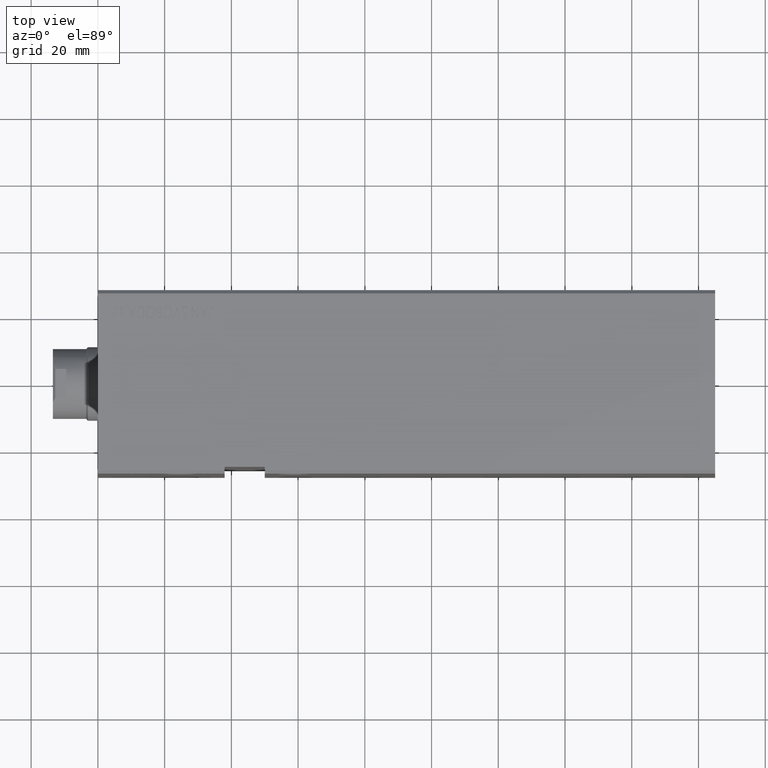
[diagram: clean part render]
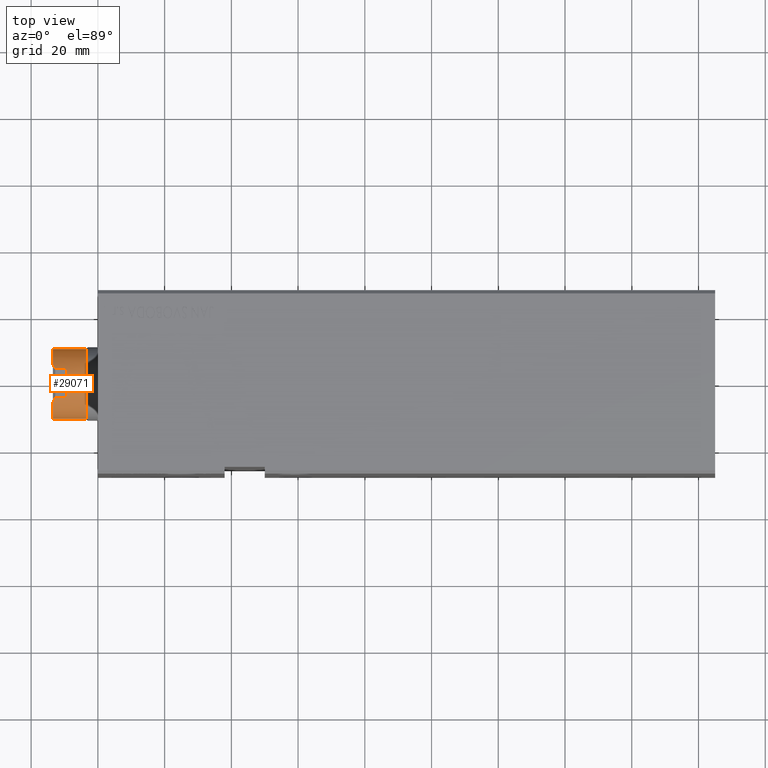
[diagram: same view with one face highlighted and labeled with its STEP entity id]
A machine part, top view. The second image highlights one B-rep face of the part: STEP entity #29071.
In plain terms, the highlighted cylindrical surface (edge-blend (fillet) strip) has radius 10.46 mm, axis along (-1, -0, -0).
Its self-contained STEP definition (entity closure, byte-faithful):
#2073 = LINE ( 'NONE', #29870, #17425 ) ;
#2791 = EDGE_LOOP ( 'NONE', ( #27943, #11962, #25931, #2933, #5032, #22226, #9456, #16878, #5314, #20015 ) ) ;
#2933 = ORIENTED_EDGE ( 'NONE', *, *, #8256, .T. ) ;
#3256 = CARTESIAN_POINT ( 'NONE',  ( 9.500000000000000000, 4.377396486497395323, 167.7900000000000489 ) ) ;
#3347 = CARTESIAN_POINT ( 'NONE',  ( 1.280980551908131527E-15, 10.45999999999996888, 168.5000000000000000 ) ) ;
#3647 = CARTESIAN_POINT ( 'NONE',  ( 9.500000000000000000, -4.377396486497458383, 167.7900000000000489 ) ) ;
#4250 = DIRECTION ( 'NONE',  ( 0.000000000000000000, -1.000000000000000000, 0.000000000000000000 ) ) ;
#4658 = AXIS2_PLACEMENT_3D ( 'NONE', #5890, #19424, #4250 ) ;
#4815 = DIRECTION ( 'NONE',  ( -0.000000000000000000, -1.830961800348780351E-16, 1.000000000000000000 ) ) ;
#5032 = ORIENTED_EDGE ( 'NONE', *, *, #34159, .T. ) ;
#5314 = ORIENTED_EDGE ( 'NONE', *, *, #36411, .F. ) ;
#5890 = CARTESIAN_POINT ( 'NONE',  ( 0.000000000000000000, -3.085170633587695342E-14, 168.5000000000000000 ) ) ;
#5997 = DIRECTION ( 'NONE',  ( 0.000000000000000000, 1.830961800348780351E-16, -1.000000000000000000 ) ) ;
#6751 = VECTOR ( 'NONE', #9557, 1000.000000000000000 ) ;
#7099 = CARTESIAN_POINT ( 'NONE',  ( 8.790000000000025793, 5.669876541865724207, 168.5000000000000000 ) ) ;
#7405 = CARTESIAN_POINT ( 'NONE',  ( 0.000000000000000000, -3.085170633587695342E-14, 168.5000000000000000 ) ) ;
#7492 = CARTESIAN_POINT ( 'NONE',  ( 9.056889589612573843, 5.256118063110149841, 168.2331104103874964 ) ) ;
#8256 = EDGE_CURVE ( 'NONE', #34625, #27862, #21797, .T. ) ;
#8690 = CARTESIAN_POINT ( 'NONE',  ( 8.790000000000025793, -5.669876541865786379, 168.5000000000000000 ) ) ;
#9431 = EDGE_CURVE ( 'NONE', #25164, #30307, #21986, .T. ) ;
#9456 = ORIENTED_EDGE ( 'NONE', *, *, #9805, .T. ) ;
#9557 = DIRECTION ( 'NONE',  ( -0.000000000000000000, -1.830961800348780351E-16, 1.000000000000000000 ) ) ;
#9590 = CARTESIAN_POINT ( 'NONE',  ( 9.500000000000000000, -4.377396486497458383, 167.7900000000000489 ) ) ;
#9769 =( BOUNDED_CURVE ( )  B_SPLINE_CURVE ( 3, ( #3647, #21837, #18443, #30638 ),
 .UNSPECIFIED., .F., .F. ) 
 B_SPLINE_CURVE_WITH_KNOTS ( ( 4, 4 ),
 ( 3.573373807102884214, 3.714471135698162563 ),
 .UNSPECIFIED. ) 
 CURVE ( )  GEOMETRIC_REPRESENTATION_ITEM ( )  RATIONAL_B_SPLINE_CURVE ( ( 1.000000000000000000, 0.9983416499762386431, 0.9983416499762386431, 1.000000000000000000 ) ) 
 REPRESENTATION_ITEM ( '' )  );
#9805 = EDGE_CURVE ( 'NONE', #37475, #27402, #2073, .T. ) ;
#10578 = CARTESIAN_POINT ( 'NONE',  ( 0.000000000000000000, -3.011932161573743842E-14, 164.5000000000000000 ) ) ;
#10650 = CARTESIAN_POINT ( 'NONE',  ( 1.314046015485110656E-15, -10.46000000000002750, 158.5000000000000000 ) ) ;
#11378 = DIRECTION ( 'NONE',  ( 0.000000000000000000, -1.000000000000000000, 0.000000000000000000 ) ) ;
#11626 = CIRCLE ( 'NONE', #14187, 10.45999999999999908 ) ;
#11962 = ORIENTED_EDGE ( 'NONE', *, *, #22706, .T. ) ;
#13295 = CARTESIAN_POINT ( 'NONE',  ( 8.790000000000025793, 5.669876541865724207, 168.5000000000000000 ) ) ;
#14187 = AXIS2_PLACEMENT_3D ( 'NONE', #19140, #14745, #20151 ) ;
#14745 = DIRECTION ( 'NONE',  ( -0.000000000000000000, -1.830961800348780351E-16, 1.000000000000000000 ) ) ;
#15038 = CARTESIAN_POINT ( 'NONE',  ( 9.500000000000000000, -4.377396486497457495, 164.5000000000000000 ) ) ;
#16328 = LINE ( 'NONE', #18939, #6751 ) ;
#16878 = ORIENTED_EDGE ( 'NONE', *, *, #21662, .T. ) ;
#16980 = DIRECTION ( 'NONE',  ( -0.000000000000000000, -1.830961800348780351E-16, 1.000000000000000000 ) ) ;
#17425 = VECTOR ( 'NONE', #30067, 1000.000000000000000 ) ;
#18443 = CARTESIAN_POINT ( 'NONE',  ( 9.056889589612575620, -5.256118063110208460, 168.2331104103874964 ) ) ;
#18575 = CARTESIAN_POINT ( 'NONE',  ( 9.500000000000000000, 4.377396486497396211, 164.5000000000000000 ) ) ;
#18939 = CARTESIAN_POINT ( 'NONE',  ( 1.280980551908131527E-15, 10.45999999999996888, 168.5000000000000000 ) ) ;
#19140 = CARTESIAN_POINT ( 'NONE',  ( 0.000000000000000000, -2.902074453552816907E-14, 158.5000000000000000 ) ) ;
#19424 = DIRECTION ( 'NONE',  ( -0.000000000000000000, -1.830961800348780351E-16, 1.000000000000000000 ) ) ;
#19439 = CARTESIAN_POINT ( 'NONE',  ( 0.000000000000000000, 10.45999999999996888, 158.5000000000000000 ) ) ;
#19575 = CARTESIAN_POINT ( 'NONE',  ( 0.000000000000000000, -10.46000000000003105, 168.5000000000000000 ) ) ;
#19650 = VERTEX_POINT ( 'NONE', #19439 ) ;
#19690 = CARTESIAN_POINT ( 'NONE',  ( 9.293949384395547852, 4.824575729748585395, 167.9960506156045312 ) ) ;
#19801 = VERTEX_POINT ( 'NONE', #18575 ) ;
#19861 = CIRCLE ( 'NONE', #31358, 10.46000000000000085 ) ;
#20015 = ORIENTED_EDGE ( 'NONE', *, *, #9431, .F. ) ;
#20151 = DIRECTION ( 'NONE',  ( 0.000000000000000000, -1.000000000000000000, 0.000000000000000000 ) ) ;
#21662 = EDGE_CURVE ( 'NONE', #27402, #33559, #9769, .T. ) ;
#21797 =( BOUNDED_CURVE ( )  B_SPLINE_CURVE ( 3, ( #13295, #7492, #19690, #28899 ),
 .UNSPECIFIED., .F., .F. ) 
 B_SPLINE_CURVE_WITH_KNOTS ( ( 4, 4 ),
 ( 2.568714171481423669, 2.709811500076702462 ),
 .UNSPECIFIED. ) 
 CURVE ( )  GEOMETRIC_REPRESENTATION_ITEM ( )  RATIONAL_B_SPLINE_CURVE ( ( 1.000000000000000000, 0.9983416499762386431, 0.9983416499762386431, 1.000000000000000000 ) ) 
 REPRESENTATION_ITEM ( '' )  );
#21837 = CARTESIAN_POINT ( 'NONE',  ( 9.293949384395546076, -4.824575729748648456, 167.9960506156045312 ) ) ;
#21986 = LINE ( 'NONE', #19575, #32114 ) ;
#22226 = ORIENTED_EDGE ( 'NONE', *, *, #31084, .T. ) ;
#22706 = EDGE_CURVE ( 'NONE', #19650, #27597, #16328, .T. ) ;
#22779 = DIRECTION ( 'NONE',  ( -0.000000000000000000, -0.000000000000000000, -1.000000000000000000 ) ) ;
#23188 = CIRCLE ( 'NONE', #4658, 10.46000000000000085 ) ;
#23573 = CARTESIAN_POINT ( 'NONE',  ( 0.000000000000000000, -3.085170633587695342E-14, 168.5000000000000000 ) ) ;
#25164 = VERTEX_POINT ( 'NONE', #10650 ) ;
#25407 = EDGE_CURVE ( 'NONE', #34625, #27597, #26335, .T. ) ;
#25931 = ORIENTED_EDGE ( 'NONE', *, *, #25407, .F. ) ;
#26335 = CIRCLE ( 'NONE', #31418, 10.46000000000000085 ) ;
#26970 = VECTOR ( 'NONE', #5997, 1000.000000000000000 ) ;
#27402 = VERTEX_POINT ( 'NONE', #9590 ) ;
#27597 = VERTEX_POINT ( 'NONE', #3347 ) ;
#27862 = VERTEX_POINT ( 'NONE', #3256 ) ;
#27943 = ORIENTED_EDGE ( 'NONE', *, *, #34372, .T. ) ;
#28388 = DIRECTION ( 'NONE',  ( -1.000000000000000000, 0.000000000000000000, 0.000000000000000000 ) ) ;
#28899 = CARTESIAN_POINT ( 'NONE',  ( 9.500000000000000000, 4.377396486497395323, 167.7900000000000489 ) ) ;
#29071 = ADVANCED_FACE ( 'NONE', ( #32162 ), #32968, .T. ) ;
#29206 = DIRECTION ( 'NONE',  ( 0.000000000000000000, -1.000000000000000000, 0.000000000000000000 ) ) ;
#29870 = CARTESIAN_POINT ( 'NONE',  ( 9.500000000000000000, -4.377396486497458383, 168.5000000000000000 ) ) ;
#30067 = DIRECTION ( 'NONE',  ( -0.000000000000000000, -1.830961800348780351E-16, 1.000000000000000000 ) ) ;
#30182 = CARTESIAN_POINT ( 'NONE',  ( 9.500000000000000000, 4.377396486497395323, 168.5000000000000000 ) ) ;
#30307 = VERTEX_POINT ( 'NONE', #33347 ) ;
#30638 = CARTESIAN_POINT ( 'NONE',  ( 8.790000000000025793, -5.669876541865786379, 168.5000000000000000 ) ) ;
#31084 = EDGE_CURVE ( 'NONE', #19801, #37475, #19861, .T. ) ;
#31358 = AXIS2_PLACEMENT_3D ( 'NONE', #10578, #22779, #28388 ) ;
#31418 = AXIS2_PLACEMENT_3D ( 'NONE', #7405, #4815, #29206 ) ;
#32114 = VECTOR ( 'NONE', #37345, 1000.000000000000000 ) ;
#32162 = FACE_OUTER_BOUND ( 'NONE', #2791, .T. ) ;
#32968 = CYLINDRICAL_SURFACE ( 'NONE', #34811, 10.46000000000000085 ) ;
#32989 = LINE ( 'NONE', #30182, #26970 ) ;
#33347 = CARTESIAN_POINT ( 'NONE',  ( 0.000000000000000000, -10.46000000000003105, 168.5000000000000000 ) ) ;
#33559 = VERTEX_POINT ( 'NONE', #8690 ) ;
#34159 = EDGE_CURVE ( 'NONE', #27862, #19801, #32989, .T. ) ;
#34372 = EDGE_CURVE ( 'NONE', #25164, #19650, #11626, .T. ) ;
#34625 = VERTEX_POINT ( 'NONE', #7099 ) ;
#34811 = AXIS2_PLACEMENT_3D ( 'NONE', #23573, #16980, #11378 ) ;
#36411 = EDGE_CURVE ( 'NONE', #30307, #33559, #23188, .T. ) ;
#37345 = DIRECTION ( 'NONE',  ( -0.000000000000000000, -1.830961800348780351E-16, 1.000000000000000000 ) ) ;
#37475 = VERTEX_POINT ( 'NONE', #15038 ) ;